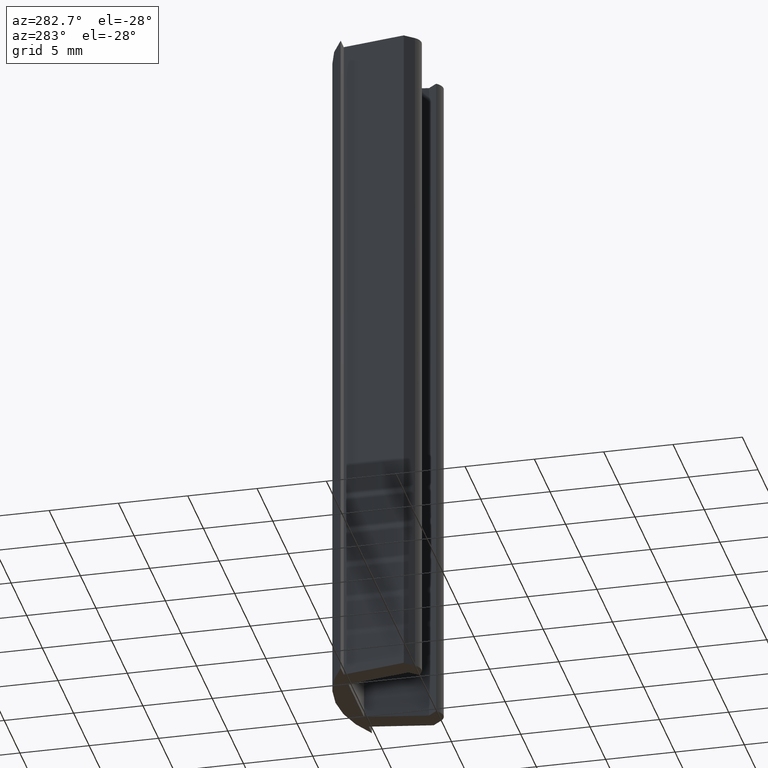
[diagram: clean part render]
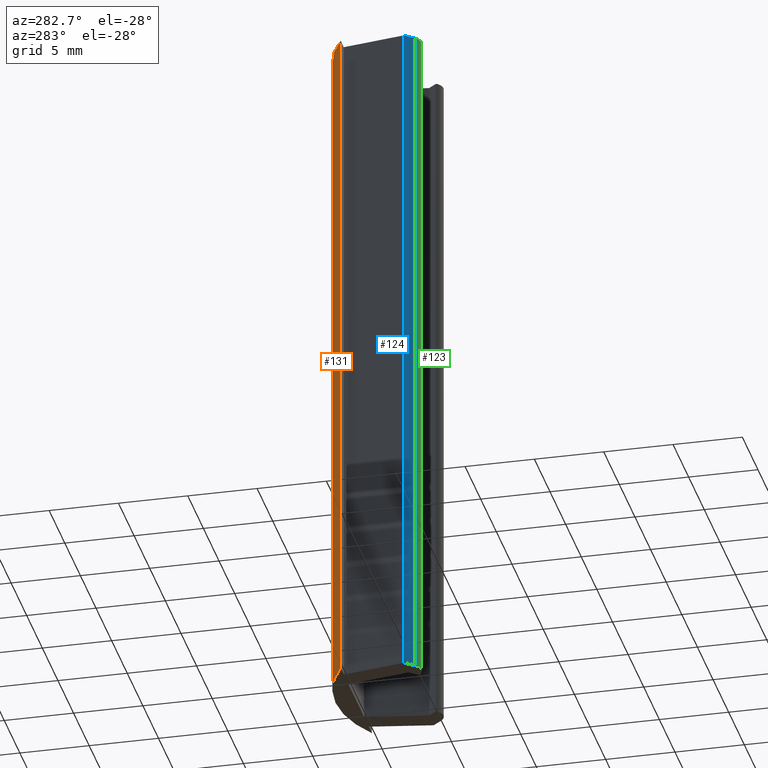
[diagram: same view with three faces highlighted in distinct colors, each labeled with its STEP entity id]
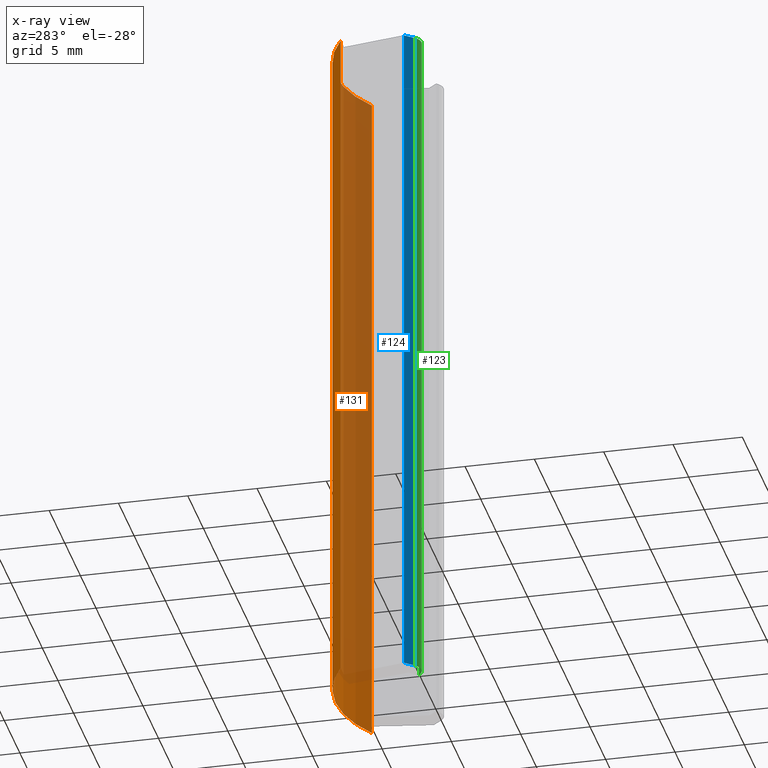
[diagram: x-ray of the same camera — body ghosted, the three highlighted faces saturated]
A machine part, auxiliary view with three faces highlighted in distinct colors.
The next image is the same camera in x-ray (body ghosted, the three faces saturated) — at least one of them is partly hidden behind the body in this view.
Their STEP definitions:

[orange] entity #131 — the highlighted cylindrical surface (partial cylindrical patch) has radius 9.0833 mm, axis along (0, 0, 1).
#9 = CARTESIAN_POINT ( 'NONE',  ( 8.963294685248413900, 5.500000000429616300, 50.00000000000000000 ) ) ;
#15 = CARTESIAN_POINT ( 'NONE',  ( -1.036705315469700400, 5.499999998997998900, 0.0000000000000000000 ) ) ;
#51 = CARTESIAN_POINT ( 'NONE',  ( -1.036705315469700400, 5.499999998997998900, 50.00000000000000000 ) ) ;
#52 = CARTESIAN_POINT ( 'NONE',  ( 8.963294685248413900, 5.500000000429616300, 0.0000000000000000000 ) ) ;
#66 = DIRECTION ( 'NONE',  ( 0.0000000000000000000, 0.0000000000000000000, 1.000000000000000000 ) ) ;
#67 = CARTESIAN_POINT ( 'NONE',  ( 8.963294684596828400, 5.500000000859232700, 25.00000000000000000 ) ) ;
#112 = DIRECTION ( 'NONE',  ( 1.000000000000000000, 0.0000000000000000000, 0.0000000000000000000 ) ) ;
#131 = ADVANCED_FACE ( 'NONE', ( #466 ), #467, .T. ) ;
#148 = EDGE_CURVE ( 'NONE', #202, #231, #431, .T. ) ;
#149 = EDGE_CURVE ( 'NONE', #202, #229, #434, .T. ) ;
#150 = EDGE_CURVE ( 'NONE', #229, #200, #421, .T. ) ;
#176 = EDGE_CURVE ( 'NONE', #231, #200, #273, .T. ) ;
#179 = DIRECTION ( 'NONE',  ( 1.000000000000000000, 0.0000000000000000000, 0.0000000000000000000 ) ) ;
#200 = VERTEX_POINT ( 'NONE', #9 ) ;
#202 = VERTEX_POINT ( 'NONE', #15 ) ;
#206 = CARTESIAN_POINT ( 'NONE',  ( 3.963294686000000700, -2.083333333000000100, 0.0000000000000000000 ) ) ;
#215 = DIRECTION ( 'NONE',  ( 0.0000000000000000000, 0.0000000000000000000, 1.000000000000000000 ) ) ;
#229 = VERTEX_POINT ( 'NONE', #51 ) ;
#231 = VERTEX_POINT ( 'NONE', #52 ) ;
#273 = LINE ( 'NONE', #67, #322 ) ;
#322 = VECTOR ( 'NONE', #66, 1000.000000000000000 ) ;
#356 = ORIENTED_EDGE ( 'NONE', *, *, #176, .F. ) ;
#357 = ORIENTED_EDGE ( 'NONE', *, *, #148, .F. ) ;
#358 = ORIENTED_EDGE ( 'NONE', *, *, #149, .T. ) ;
#359 = ORIENTED_EDGE ( 'NONE', *, *, #150, .T. ) ;
#387 = EDGE_LOOP ( 'NONE', ( #356, #357, #358, #359 ) ) ;
#421 = CIRCLE ( 'NONE', #513, 9.083333333000000600 ) ;
#428 = VECTOR ( 'NONE', #570, 1000.000000000000000 ) ;
#431 = CIRCLE ( 'NONE', #498, 9.083333333000000600 ) ;
#434 = LINE ( 'NONE', #571, #428 ) ;
#466 = FACE_OUTER_BOUND ( 'NONE', #387, .T. ) ;
#467 = CYLINDRICAL_SURFACE ( 'NONE', #522, 9.083333333000000600 ) ;
#498 = AXIS2_PLACEMENT_3D ( 'NONE', #560, #559, #558 ) ;
#513 = AXIS2_PLACEMENT_3D ( 'NONE', #524, #523, #112 ) ;
#522 = AXIS2_PLACEMENT_3D ( 'NONE', #206, #215, #179 ) ;
#523 = DIRECTION ( 'NONE',  ( -0.0000000000000000000, -0.0000000000000000000, -1.000000000000000000 ) ) ;
#524 = CARTESIAN_POINT ( 'NONE',  ( 3.963294686000000700, -2.083333333000000100, 50.00000000000000000 ) ) ;
#558 = DIRECTION ( 'NONE',  ( 1.000000000000000000, 0.0000000000000000000, 0.0000000000000000000 ) ) ;
#559 = DIRECTION ( 'NONE',  ( -0.0000000000000000000, -0.0000000000000000000, -1.000000000000000000 ) ) ;
#560 = CARTESIAN_POINT ( 'NONE',  ( 3.963294686000000700, -2.083333333000000100, 0.0000000000000000000 ) ) ;
#570 = DIRECTION ( 'NONE',  ( 0.0000000000000000000, 0.0000000000000000000, 1.000000000000000000 ) ) ;
#571 = CARTESIAN_POINT ( 'NONE',  ( -1.036705314000000000, 5.500000000000000000, 25.00000000000000000 ) ) ;

[blue] entity #124 — the highlighted planar face has unit normal (0.7669, 0.6417, -0).
#3 = CARTESIAN_POINT ( 'NONE',  ( -0.8367053140000001400, 1.000000000000000000, 49.99999999999999300 ) ) ;
#7 = CARTESIAN_POINT ( 'NONE',  ( -0.8367053138553806100, 1.000000000813483900, 0.0000000000000000000 ) ) ;
#16 = CARTESIAN_POINT ( 'NONE',  ( -0.2632543417690722500, 0.3146320893094953800, 49.99999999999999300 ) ) ;
#28 = DIRECTION ( 'NONE',  ( -0.0000000000000000000, -0.0000000000000000000, -1.000000000000000000 ) ) ;
#31 = CARTESIAN_POINT ( 'NONE',  ( -0.2632543390000000000, 0.3146320860000000300, 25.00000000000000000 ) ) ;
#35 = DIRECTION ( 'NONE',  ( -0.6417093793053494400, 0.7669478942611049900, 0.0000000000000000000 ) ) ;
#36 = CARTESIAN_POINT ( 'NONE',  ( -0.2632543360799998700, 0.3146320859640001100, 0.0000000000000000000 ) ) ;
#46 = CARTESIAN_POINT ( 'NONE',  ( -0.2632543211076045500, 0.3146320663425941600, 0.0000000000000000000 ) ) ;
#60 = CARTESIAN_POINT ( 'NONE',  ( -0.8367053140000001400, 1.000000000000000000, 25.00000000000000000 ) ) ;
#64 = DIRECTION ( 'NONE',  ( 0.0000000000000000000, 0.0000000000000000000, 1.000000000000000000 ) ) ;
#118 = DIRECTION ( 'NONE',  ( -0.6417093784895814300, 0.7669478949436624400, 0.0000000000000000000 ) ) ;
#119 = CARTESIAN_POINT ( 'NONE',  ( -0.2632543390000000000, 0.3146320860000000300, 49.99999999999998600 ) ) ;
#124 = ADVANCED_FACE ( 'NONE', ( #458 ), #180, .F. ) ;
#160 = EDGE_CURVE ( 'NONE', #198, #210, #263, .T. ) ;
#180 = PLANE ( 'NONE',  #517 ) ;
#184 = CARTESIAN_POINT ( 'NONE',  ( -0.2632543390000000000, 0.3146320860000000300, 0.0000000000000000000 ) ) ;
#186 = DIRECTION ( 'NONE',  ( 0.7669478949436625600, 0.6417093784895815400, -0.0000000000000000000 ) ) ;
#190 = DIRECTION ( 'NONE',  ( -0.6417093784895814300, 0.7669478949436624400, 0.0000000000000000000 ) ) ;
#198 = VERTEX_POINT ( 'NONE', #16 ) ;
#203 = VERTEX_POINT ( 'NONE', #7 ) ;
#210 = VERTEX_POINT ( 'NONE', #3 ) ;
#212 = VERTEX_POINT ( 'NONE', #46 ) ;
#263 = LINE ( 'NONE', #119, #265 ) ;
#265 = VECTOR ( 'NONE', #118, 1000.000000000000200 ) ;
#311 = VECTOR ( 'NONE', #28, 1000.000000000000000 ) ;
#312 = LINE ( 'NONE', #31, #311 ) ;
#313 = VECTOR ( 'NONE', #35, 1000.000000000000000 ) ;
#315 = LINE ( 'NONE', #36, #313 ) ;
#316 = LINE ( 'NONE', #60, #320 ) ;
#320 = VECTOR ( 'NONE', #64, 1000.000000000000000 ) ;
#381 = ORIENTED_EDGE ( 'NONE', *, *, #514, .F. ) ;
#382 = ORIENTED_EDGE ( 'NONE', *, *, #160, .T. ) ;
#383 = ORIENTED_EDGE ( 'NONE', *, *, #495, .F. ) ;
#384 = ORIENTED_EDGE ( 'NONE', *, *, #510, .F. ) ;
#400 = EDGE_LOOP ( 'NONE', ( #381, #382, #383, #384 ) ) ;
#458 = FACE_OUTER_BOUND ( 'NONE', #400, .T. ) ;
#495 = EDGE_CURVE ( 'NONE', #203, #210, #316, .T. ) ;
#510 = EDGE_CURVE ( 'NONE', #212, #203, #315, .T. ) ;
#514 = EDGE_CURVE ( 'NONE', #198, #212, #312, .T. ) ;
#517 = AXIS2_PLACEMENT_3D ( 'NONE', #184, #186, #190 ) ;

[green] entity #123 — the highlighted cylindrical surface (edge-blend (fillet) strip) has radius 0.95 mm, axis along (0, -0, 1).
#16 = CARTESIAN_POINT ( 'NONE',  ( -0.2632543417690722500, 0.3146320893094953800, 49.99999999999999300 ) ) ;
#17 = CARTESIAN_POINT ( 'NONE',  ( 1.193008794993660500, 0.3669048105073159400, 50.00000000000000000 ) ) ;
#28 = DIRECTION ( 'NONE',  ( -0.0000000000000000000, -0.0000000000000000000, -1.000000000000000000 ) ) ;
#31 = CARTESIAN_POINT ( 'NONE',  ( -0.2632543390000000000, 0.3146320860000000300, 25.00000000000000000 ) ) ;
#38 = CARTESIAN_POINT ( 'NONE',  ( 1.193008794993660500, 0.3669048105073159400, 0.0000000000000000000 ) ) ;
#41 = DIRECTION ( 'NONE',  ( -0.0000000000000000000, -0.0000000000000000000, -1.000000000000000000 ) ) ;
#42 = CARTESIAN_POINT ( 'NONE',  ( 1.193008794792056200, 0.3669048102480050300, 25.00000000000000000 ) ) ;
#46 = CARTESIAN_POINT ( 'NONE',  ( -0.2632543211076045500, 0.3146320663425941600, 0.0000000000000000000 ) ) ;
#77 = CARTESIAN_POINT ( 'NONE',  ( 0.4430087950000001200, 0.9500000000000000700, 50.00000000000000000 ) ) ;
#90 = DIRECTION ( 'NONE',  ( 1.000000000000000000, 0.0000000000000000000, 0.0000000000000000000 ) ) ;
#91 = DIRECTION ( 'NONE',  ( -0.0000000000000000000, 0.0000000000000000000, -1.000000000000000000 ) ) ;
#94 = CARTESIAN_POINT ( 'NONE',  ( 0.4430087950000001200, 0.9500000000000000700, 0.0000000000000000000 ) ) ;
#120 = DIRECTION ( 'NONE',  ( 1.000000000000000000, 0.0000000000000000000, 0.0000000000000000000 ) ) ;
#121 = DIRECTION ( 'NONE',  ( -0.0000000000000000000, 0.0000000000000000000, -1.000000000000000000 ) ) ;
#123 = ADVANCED_FACE ( 'NONE', ( #455 ), #456, .T. ) ;
#157 = EDGE_CURVE ( 'NONE', #211, #212, #270, .T. ) ;
#159 = EDGE_CURVE ( 'NONE', #199, #198, #264, .T. ) ;
#178 = DIRECTION ( 'NONE',  ( 1.000000000000000000, 0.0000000000000000000, 0.0000000000000000000 ) ) ;
#198 = VERTEX_POINT ( 'NONE', #16 ) ;
#199 = VERTEX_POINT ( 'NONE', #17 ) ;
#211 = VERTEX_POINT ( 'NONE', #38 ) ;
#212 = VERTEX_POINT ( 'NONE', #46 ) ;
#233 = DIRECTION ( 'NONE',  ( 0.0000000000000000000, -0.0000000000000000000, 1.000000000000000000 ) ) ;
#235 = CARTESIAN_POINT ( 'NONE',  ( 0.4430087950000001200, 0.9500000000000000700, 0.0000000000000000000 ) ) ;
#264 = CIRCLE ( 'NONE', #512, 0.9499999999999997300 ) ;
#270 = CIRCLE ( 'NONE', #506, 0.9499999999999997300 ) ;
#275 = LINE ( 'NONE', #42, #314 ) ;
#311 = VECTOR ( 'NONE', #28, 1000.000000000000000 ) ;
#312 = LINE ( 'NONE', #31, #311 ) ;
#314 = VECTOR ( 'NONE', #41, 1000.000000000000000 ) ;
#377 = ORIENTED_EDGE ( 'NONE', *, *, #514, .T. ) ;
#378 = ORIENTED_EDGE ( 'NONE', *, *, #157, .F. ) ;
#379 = ORIENTED_EDGE ( 'NONE', *, *, #507, .F. ) ;
#380 = ORIENTED_EDGE ( 'NONE', *, *, #159, .T. ) ;
#401 = EDGE_LOOP ( 'NONE', ( #377, #378, #379, #380 ) ) ;
#455 = FACE_OUTER_BOUND ( 'NONE', #401, .T. ) ;
#456 = CYLINDRICAL_SURFACE ( 'NONE', #516, 0.9499999999999997300 ) ;
#506 = AXIS2_PLACEMENT_3D ( 'NONE', #94, #91, #90 ) ;
#507 = EDGE_CURVE ( 'NONE', #199, #211, #275, .T. ) ;
#512 = AXIS2_PLACEMENT_3D ( 'NONE', #77, #121, #120 ) ;
#514 = EDGE_CURVE ( 'NONE', #198, #212, #312, .T. ) ;
#516 = AXIS2_PLACEMENT_3D ( 'NONE', #235, #233, #178 ) ;